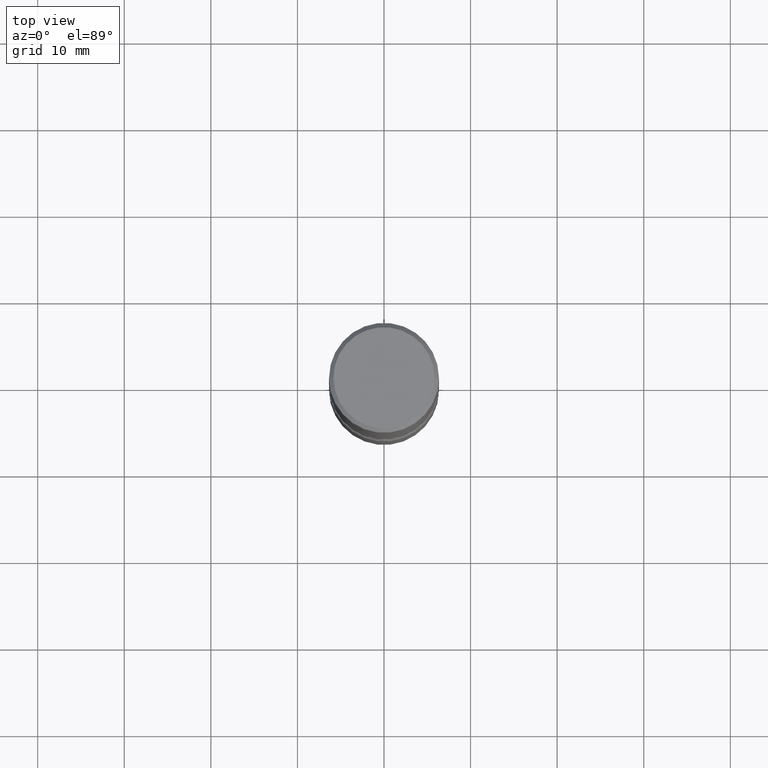
[diagram: clean part render]
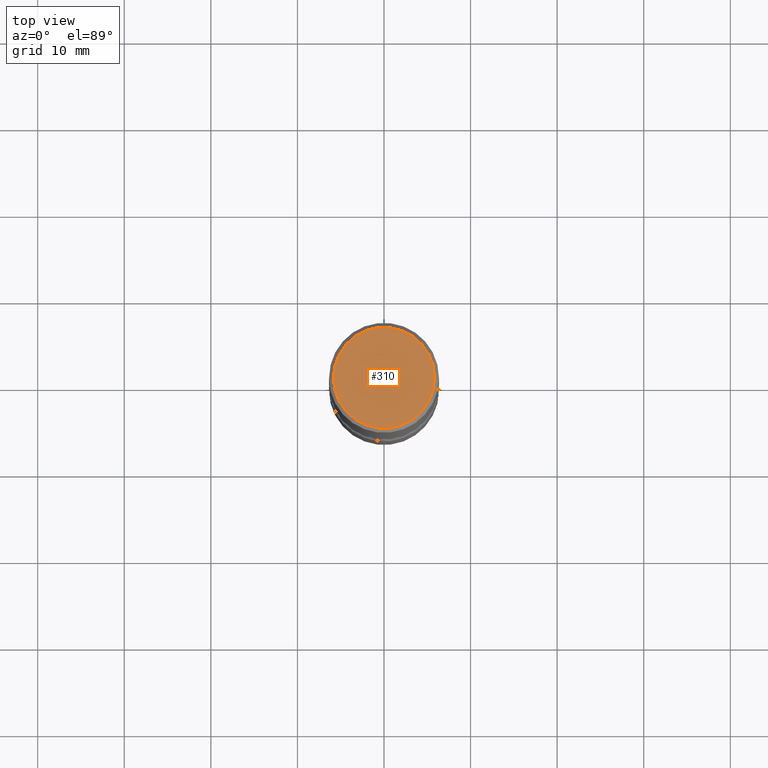
[diagram: same view with one face highlighted and labeled with its STEP entity id]
A machine part, top view. The second image highlights one B-rep face of the part: STEP entity #310.
In plain terms, the highlighted planar face has unit normal (0, -0, -1).
Its self-contained STEP definition (entity closure, byte-faithful):
#5 = CIRCLE ( 'NONE', #286, 0.2300000000000004818 ) ;
#63 = ORIENTED_EDGE ( 'NONE', *, *, #552, .T. ) ;
#71 = AXIS2_PLACEMENT_3D ( 'NONE', #172, #131, #553 ) ;
#85 = PLANE ( 'NONE',  #71 ) ;
#111 = VERTEX_POINT ( 'NONE', #315 ) ;
#129 = DIRECTION ( 'NONE',  ( -2.445468806185136597E-29, 3.491481338843145583E-15, 1.000000000000000000 ) ) ;
#131 = DIRECTION ( 'NONE',  ( 2.438088387897960049E-29, -3.491481338843145188E-15, -1.000000000000000000 ) ) ;
#135 = EDGE_LOOP ( 'NONE', ( #63, #153 ) ) ;
#153 = ORIENTED_EDGE ( 'NONE', *, *, #463, .T. ) ;
#167 = FACE_OUTER_BOUND ( 'NONE', #135, .T. ) ;
#172 = CARTESIAN_POINT ( 'NONE',  ( 1.606081415867844617E-15, 0.2300000000000004818, -8.115777329141259230E-16 ) ) ;
#191 = VERTEX_POINT ( 'NONE', #241 ) ;
#201 = CIRCLE ( 'NONE', #448, 0.2300000000000004818 ) ;
#241 = CARTESIAN_POINT ( 'NONE',  ( -0.2300000000000004818, 1.640996229256275675E-15, -1.707404996041300040E-17 ) ) ;
#286 = AXIS2_PLACEMENT_3D ( 'NONE', #470, #455, #362 ) ;
#310 = ADVANCED_FACE ( 'NONE', ( #167 ), #85, .F. ) ;
#315 = CARTESIAN_POINT ( 'NONE',  ( 0.2300000000000004818, -1.681434332853602167E-15, -1.707404996039015117E-17 ) ) ;
#339 = CARTESIAN_POINT ( 'NONE',  ( 4.175405657340879278E-46, -5.961372681521788801E-32, -1.707404996040164512E-17 ) ) ;
#362 = DIRECTION ( 'NONE',  ( 1.000000000000000000, -6.982962677686265922E-15, 4.875813741439089685E-29 ) ) ;
#448 = AXIS2_PLACEMENT_3D ( 'NONE', #339, #129, #559 ) ;
#455 = DIRECTION ( 'NONE',  ( -2.445468806185136597E-29, 3.491481338843145583E-15, 1.000000000000000000 ) ) ;
#463 = EDGE_CURVE ( 'NONE', #111, #191, #5, .T. ) ;
#470 = CARTESIAN_POINT ( 'NONE',  ( 4.175405657340879278E-46, -5.961372681521788801E-32, -1.707404996040164512E-17 ) ) ;
#552 = EDGE_CURVE ( 'NONE', #191, #111, #201, .T. ) ;
#553 = DIRECTION ( 'NONE',  ( -1.000000000000000000, 6.982962677686265922E-15, -4.876176775795935793E-29 ) ) ;
#559 = DIRECTION ( 'NONE',  ( 1.000000000000000000, -6.982962677686265922E-15, 4.875813741439089685E-29 ) ) ;